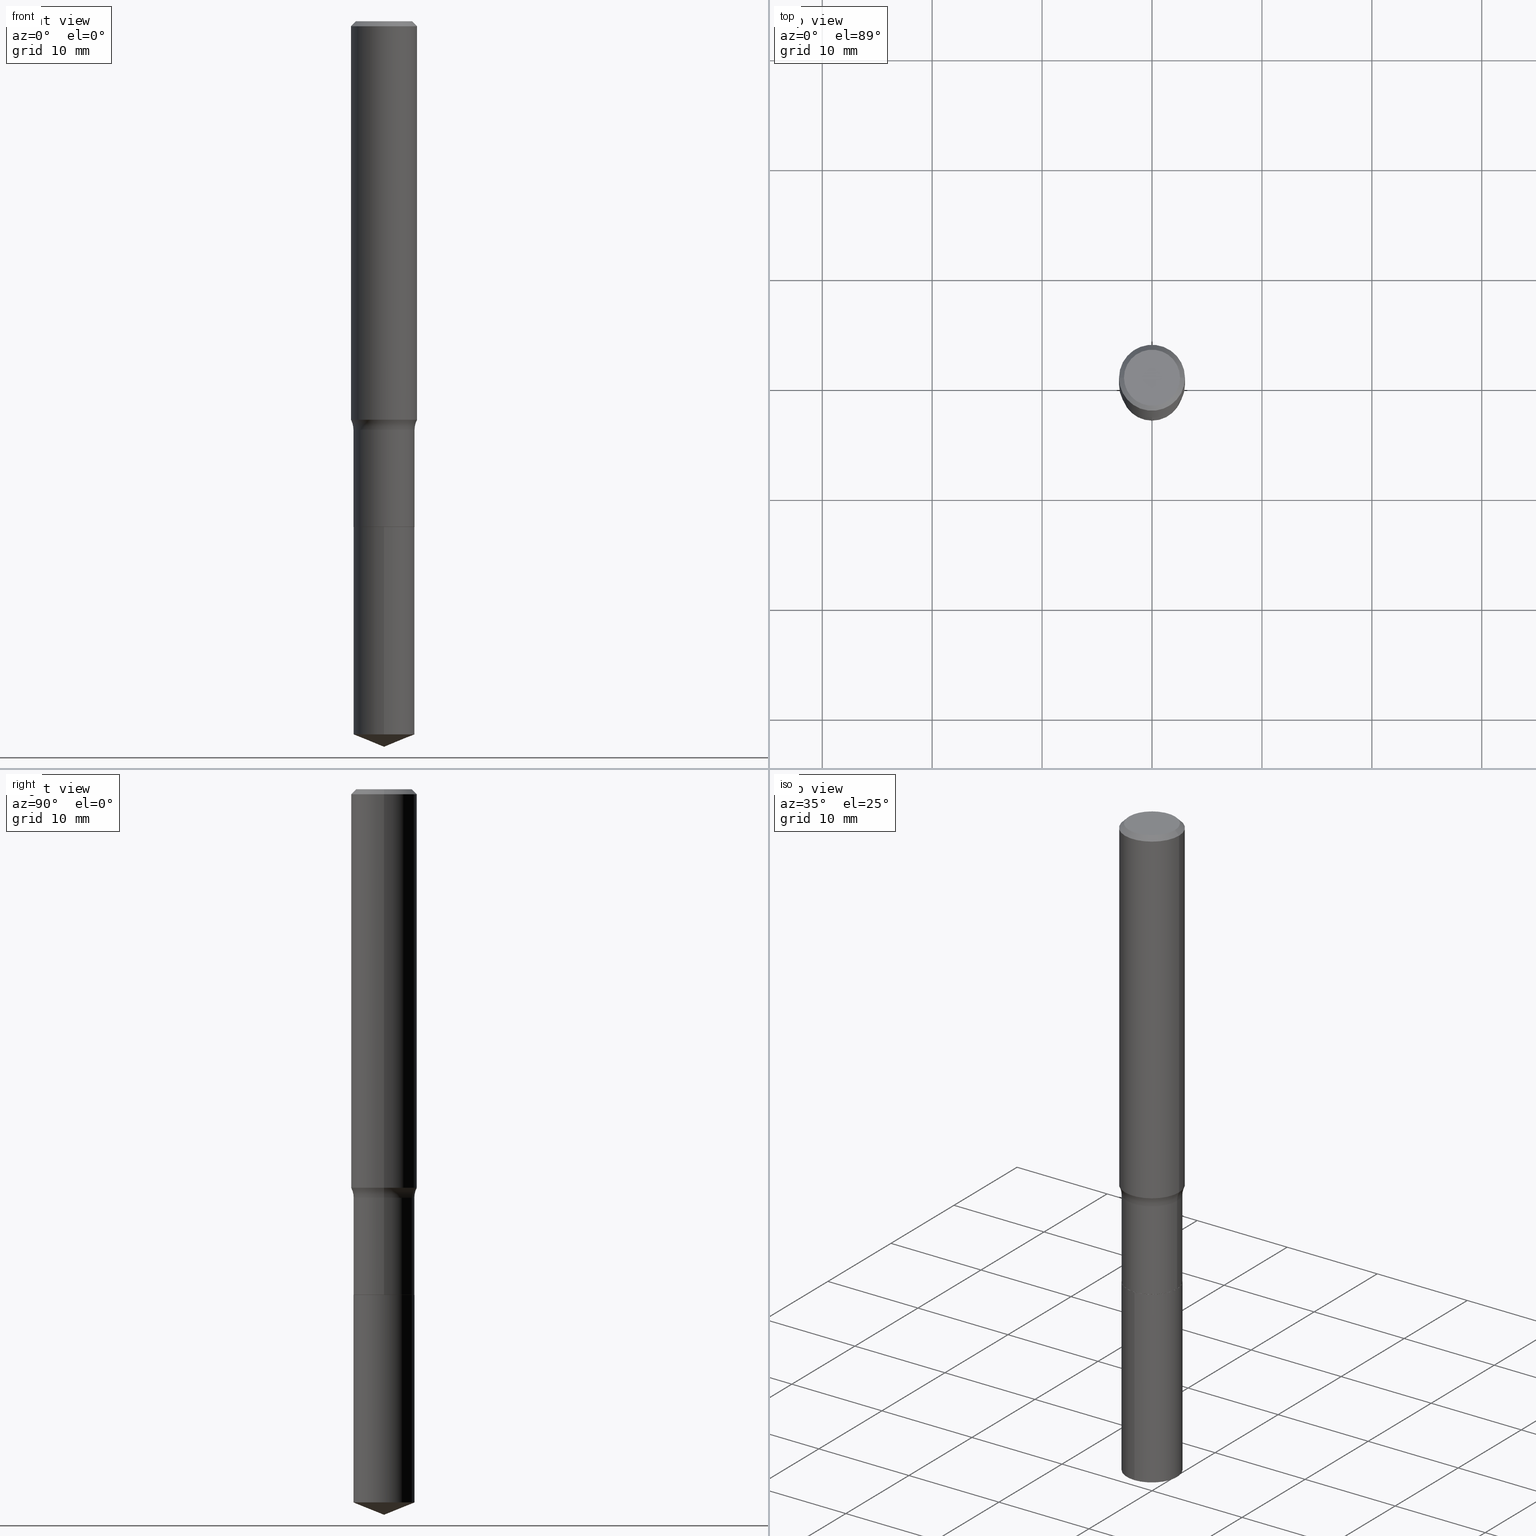
[diagram: canonical four-view strip — front | top / right | iso, engineering-drawing reading convention]
A machine part, canonical four-view strip (front | top / right | iso — engineering-drawing reading convention). The complete STEP part file that produces these views, byte-faithful:
ISO-10303-21;
HEADER;
FILE_DESCRIPTION (( 'STEP AP203' ),
    '1' );
FILE_NAME ('56808.STEP',
    '2024-04-19T14:01:16',
    ( '' ),
    ( '' ),
    'SwSTEP 2.0',
    'SolidWorks 2023',
    '' );
FILE_SCHEMA (( 'CONFIG_CONTROL_DESIGN' ));
ENDSEC;

DATA;
#1 = CIRCLE ( 'NONE', #265, 0.1088999999999999968 ) ;
#2 = CC_DESIGN_SECURITY_CLASSIFICATION ( #406, ( #122 ) ) ;
#3 = VERTEX_POINT ( 'NONE', #12 ) ;
#4 = FACE_OUTER_BOUND ( 'NONE', #281, .T. ) ;
#5 = ORIENTED_EDGE ( 'NONE', *, *, #148, .T. ) ;
#6 = ORIENTED_EDGE ( 'NONE', *, *, #490, .F. ) ;
#7 = LINE ( 'NONE', #306, #66 ) ;
#8 = EDGE_LOOP ( 'NONE', ( #5, #430, #42, #102 ) ) ;
#9 = AXIS2_PLACEMENT_3D ( 'NONE', #32, #447, #35 ) ;
#10 = EDGE_CURVE ( 'NONE', #452, #426, #289, .T. ) ;
#11 = CYLINDRICAL_SURFACE ( 'NONE', #95, 0.1181000000000000799 ) ;
#12 = CARTESIAN_POINT ( 'NONE',  ( 6.354189623237778583E-29, -9.072431978065361449E-15, -2.598399999999999821 ) ) ;
#13 = ORIENTED_EDGE ( 'NONE', *, *, #70, .T. ) ;
#14 = VERTEX_POINT ( 'NONE', #22 ) ;
#15 = ORIENTED_EDGE ( 'NONE', *, *, #91, .F. ) ;
#16 = AXIS2_PLACEMENT_3D ( 'NONE', #118, #190, #339 ) ;
#17 = CIRCLE ( 'NONE', #290, 0.1181000000000001632 ) ;
#18 = CARTESIAN_POINT ( 'NONE',  ( -0.1093999999999999834, 7.773337529215494852E-16, -5.381314988738866015E-30 ) ) ;
#19 = EDGE_CURVE ( 'NONE', #58, #240, #376, .T. ) ;
#20 = FACE_OUTER_BOUND ( 'NONE', #359, .T. ) ;
#21 = DIRECTION ( 'NONE',  ( -2.445423962145081395E-29, 3.491545558060868781E-15, 1.000000000000000000 ) ) ;
#22 = CARTESIAN_POINT ( 'NONE',  ( -0.1181000000000001909, -4.144595831574545363E-15, -1.427401815688501108 ) ) ;
#23 = DIRECTION ( 'NONE',  ( -6.982962677686265922E-15, -1.000000000000000000, 4.994237648380736877E-15 ) ) ;
#24 = DIRECTION ( 'NONE',  ( -6.982962677686265922E-15, -1.000000000000000000, 2.497118824190368439E-15 ) ) ;
#25 = EDGE_CURVE ( 'NONE', #454, #120, #171, .T. ) ;
#26 = TOROIDAL_SURFACE ( 'NONE', #149, 0.1873999999999999555, 0.07799999999999999989 ) ;
#27 = CARTESIAN_POINT ( 'NONE',  ( 0.1180999999999999966, -8.720764054544245267E-16, -0.01771500000000010913 ) ) ;
#28 = APPLICATION_PROTOCOL_DEFINITION ( 'international standard', 'config_control_design', 1994, #44 ) ;
#29 = LINE ( 'NONE', #27, #428 ) ;
#30 = LINE ( 'NONE', #373, #107 ) ;
#31 = ORIENTED_EDGE ( 'NONE', *, *, #129, .T. ) ;
#32 = CARTESIAN_POINT ( 'NONE',  ( 3.578209957210091410E-29, -5.108735494995289992E-15, -1.463199999999999834 ) ) ;
#33 = AXIS2_PLACEMENT_3D ( 'NONE', #57, #174, #137 ) ;
#34 = DIRECTION ( 'NONE',  ( -2.445468806185136877E-29, 3.491481338843145188E-15, 1.000000000000000000 ) ) ;
#35 = DIRECTION ( 'NONE',  ( 1.000000000000000000, -6.982962677686267499E-15, 4.883557194083113462E-29 ) ) ;
#36 = ORIENTED_EDGE ( 'NONE', *, *, #425, .T. ) ;
#37 = ORIENTED_EDGE ( 'NONE', *, *, #460, .F. ) ;
#38 = EDGE_CURVE ( 'NONE', #491, #433, #300, .T. ) ;
#39 = PERSON_AND_ORGANIZATION_ROLE ( 'creator' ) ;
#40 = AXIS2_PLACEMENT_3D ( 'NONE', #368, #184, #180 ) ;
#41 = EDGE_LOOP ( 'NONE', ( #51, #150, #309, #203 ) ) ;
#42 = ORIENTED_EDGE ( 'NONE', *, *, #427, .F. ) ;
#43 = LINE ( 'NONE', #194, #97 ) ;
#44 = APPLICATION_CONTEXT ( 'configuration controlled 3d designs of mechanical parts and assemblies' ) ;
#45 = ORIENTED_EDGE ( 'NONE', *, *, #139, .F. ) ;
#46 = CLOSED_SHELL ( 'NONE', ( #154, #227, #59, #115, #244 ) ) ;
#47 = PRODUCT_DEFINITION ( 'UNKNOWN', '', #122, #375 ) ;
#48 = CIRCLE ( 'NONE', #165, 0.1093999999999999695 ) ;
#49 = EDGE_LOOP ( 'NONE', ( #161, #340 ) ) ;
#50 = ORIENTED_EDGE ( 'NONE', *, *, #334, .F. ) ;
#51 = ORIENTED_EDGE ( 'NONE', *, *, #374, .T. ) ;
#52 = CARTESIAN_POINT ( 'NONE',  ( 4.428744008001282238E-29, -6.323072704644935995E-15, -1.810999999999999943 ) ) ;
#53 = CC_DESIGN_DATE_AND_TIME_ASSIGNMENT ( #484, #264, ( #406 ) ) ;
#54 = PERSON_AND_ORGANIZATION_ROLE ( 'classification_officer' ) ;
#55 =( NAMED_UNIT ( * ) PLANE_ANGLE_UNIT ( ) SI_UNIT ( $, .RADIAN. ) );
#56 = AXIS2_PLACEMENT_3D ( 'NONE', #475, #204, #103 ) ;
#57 = CARTESIAN_POINT ( 'NONE',  ( 4.427521273598189436E-29, -6.321326963975514491E-15, -1.810499999999999998 ) ) ;
#58 = VERTEX_POINT ( 'NONE', #387 ) ;
#59 = ADVANCED_FACE ( 'NONE', ( #421 ), #214, .T. ) ;
#60 = ADVANCED_FACE ( 'NONE', ( #4 ), #87, .T. ) ;
#61 = APPLICATION_PROTOCOL_DEFINITION ( 'international standard', 'config_control_design', 1994, #292 ) ;
#62 = DIRECTION ( 'NONE',  ( 6.588037525764796813E-15, 0.9271838545667896447, 0.3746065934159060196 ) ) ;
#63 = APPROVAL_ROLE ( '' ) ;
#64 = CARTESIAN_POINT ( 'NONE',  ( 0.000000000000000000, 0.000000000000000000, 0.000000000000000000 ) ) ;
#65 = APPROVAL_STATUS ( 'not_yet_approved' ) ;
#66 = VECTOR ( 'NONE', #275, 39.37007874015748143 ) ;
#67 = AXIS2_PLACEMENT_3D ( 'NONE', #217, #488, #106 ) ;
#68 = LOCAL_TIME ( 10, 1, 16.00000000000000000, #219 ) ;
#69 = PLANE ( 'NONE',  #40 ) ;
#70 = EDGE_CURVE ( 'NONE', #346, #268, #7, .T. ) ;
#71 = CARTESIAN_POINT ( 'NONE',  ( 0.1088999999999999968, -7.083517340244970560E-15, -1.810999999999999943 ) ) ;
#72 = DIRECTION ( 'NONE',  ( -2.445468806185136877E-29, 3.491481338843145188E-15, 1.000000000000000000 ) ) ;
#73 = AXIS2_PLACEMENT_3D ( 'NONE', #226, #308, #414 ) ;
#74 = CARTESIAN_POINT ( 'NONE',  ( 0.1181000000000000799, -8.246878922347486570E-16, 5.758764772215004644E-30 ) ) ;
#75 = ADVANCED_FACE ( 'NONE', ( #450 ), #156, .F. ) ;
#76 = ORIENTED_EDGE ( 'NONE', *, *, #442, .T. ) ;
#77 = UNCERTAINTY_MEASURE_WITH_UNIT (LENGTH_MEASURE( 1.000000000000000082E-05 ), #350, 'distance_accuracy_value', 'NONE');
#78 = DIRECTION ( 'NONE',  ( -2.445423962145081395E-29, 3.491545558060868781E-15, 1.000000000000000000 ) ) ;
#79 = AXIS2_PLACEMENT_3D ( 'NONE', #416, #78, #229 ) ;
#80 = CIRCLE ( 'NONE', #338, 0.1180999999999999966 ) ;
#81 = ORIENTED_EDGE ( 'NONE', *, *, #391, .T. ) ;
#82 = DIRECTION ( 'NONE',  ( -6.474490251793184940E-15, -0.9271838545667872022, 0.3746065934159125144 ) ) ;
#83 = CARTESIAN_POINT ( 'NONE',  ( 4.428744008001282238E-29, -6.323072704644935995E-15, -1.810999999999999943 ) ) ;
#84 = EDGE_CURVE ( 'NONE', #314, #240, #151, .T. ) ;
#85 = PRODUCT ( '56808', '56808', '', ( #332 ) ) ;
#86 = DIRECTION ( 'NONE',  ( -6.982962677686266711E-15, -1.000000000000000000, 3.491481338843145583E-15 ) ) ;
#87 = CONICAL_SURFACE ( 'NONE', #280, 0.1180999999999999966, 0.7853981633974459475 ) ;
#88 = AXIS2_PLACEMENT_3D ( 'NONE', #64, #220, #143 ) ;
#89 = SECURITY_CLASSIFICATION_LEVEL ( 'unclassified' ) ;
#90 = EDGE_LOOP ( 'NONE', ( #191, #436, #271, #348 ) ) ;
#91 = EDGE_CURVE ( 'NONE', #393, #268, #128, .T. ) ;
#92 = DIRECTION ( 'NONE',  ( 1.000000000000000000, -6.982962677686266711E-15, 4.879445411049954809E-29 ) ) ;
#93 = ORIENTED_EDGE ( 'NONE', *, *, #407, .T. ) ;
#94 = ORIENTED_EDGE ( 'NONE', *, *, #442, .F. ) ;
#95 = AXIS2_PLACEMENT_3D ( 'NONE', #365, #251, #468 ) ;
#96 = CARTESIAN_POINT ( 'NONE',  ( 6.246181949503559424E-29, -8.917987725489524478E-15, -2.554199530893634051 ) ) ;
#97 = VECTOR ( 'NONE', #82, 39.37007874015748143 ) ;
#98 = COORDINATED_UNIVERSAL_TIME_OFFSET ( 5, 0, .BEHIND. ) ;
#99 = CALENDAR_DATE ( 2024, 19, 4 ) ;
#100 = APPROVAL_PERSON_ORGANIZATION ( #356, #291, #324 ) ;
#101 = ADVANCED_FACE ( 'NONE', ( #379 ), #11, .T. ) ;
#102 = ORIENTED_EDGE ( 'NONE', *, *, #70, .F. ) ;
#103 = DIRECTION ( 'NONE',  ( -6.982962677686265133E-15, -1.000000000000000000, 3.498761904101806258E-15 ) ) ;
#104 = ADVANCED_FACE ( 'NONE', ( #461 ), #241, .T. ) ;
#105 = CARTESIAN_POINT ( 'NONE',  ( 3.578209957210091410E-29, -5.108735494995289992E-15, -1.463199999999999834 ) ) ;
#106 = DIRECTION ( 'NONE',  ( 1.000000000000000000, -6.982962677686264344E-15, 0.000000000000000000 ) ) ;
#107 = VECTOR ( 'NONE', #72, 39.37007874015748143 ) ;
#108 = PERSON_AND_ORGANIZATION ( #179, #301 ) ;
#109 = DIRECTION ( 'NONE',  ( 1.000000000000000000, -6.982962677686267499E-15, 4.883557194083113462E-29 ) ) ;
#110 = APPROVAL_STATUS ( 'not_yet_approved' ) ;
#111 = SHAPE_DEFINITION_REPRESENTATION ( #386, #218 ) ;
#112 = LINE ( 'NONE', #74, #399 ) ;
#113 = AXIS2_PLACEMENT_3D ( 'NONE', #424, #279, #162 ) ;
#114 = VECTOR ( 'NONE', #224, 39.37007874015748143 ) ;
#115 = ADVANCED_FACE ( 'NONE', ( #195 ), #273, .T. ) ;
#116 = ORIENTED_EDGE ( 'NONE', *, *, #38, .F. ) ;
#117 = CARTESIAN_POINT ( 'NONE',  ( 3.490666614158254888E-29, -4.983746802507225138E-15, -1.427401815688501108 ) ) ;
#118 = CARTESIAN_POINT ( 'NONE',  ( 4.860842703676779252E-46, -6.939995124049229759E-32, -1.987693603526089945E-17 ) ) ;
#119 = LINE ( 'NONE', #158, #412 ) ;
#120 = VERTEX_POINT ( 'NONE', #202 ) ;
#121 = TOROIDAL_SURFACE ( 'NONE', #9, 0.1873999999999999555, 0.07799999999999999989 ) ;
#122 = PRODUCT_DEFINITION_FORMATION_WITH_SPECIFIED_SOURCE ( 'ANY', '', #85, .NOT_KNOWN. ) ;
#123 = DIRECTION ( 'NONE',  ( 1.000000000000000000, -6.982962677686269866E-15, 0.000000000000000000 ) ) ;
#124 = CARTESIAN_POINT ( 'NONE',  ( 0.000000000000000000, 0.000000000000000000, 0.000000000000000000 ) ) ;
#125 = EDGE_CURVE ( 'NONE', #14, #120, #325, .T. ) ;
#126 = DIRECTION ( 'NONE',  ( -2.445468806185136597E-29, 3.491481338843145583E-15, 1.000000000000000000 ) ) ;
#127 = ORIENTED_EDGE ( 'NONE', *, *, #455, .T. ) ;
#128 = CIRCLE ( 'NONE', #79, 0.1093999999999999972 ) ;
#129 = EDGE_CURVE ( 'NONE', #3, #287, #435, .T. ) ;
#130 = APPROVAL_PERSON_ORGANIZATION ( #108, #323, #63 ) ;
#131 = FACE_OUTER_BOUND ( 'NONE', #249, .T. ) ;
#132 = ORIENTED_EDGE ( 'NONE', *, *, #307, .F. ) ;
#133 = DIRECTION ( 'NONE',  ( -6.982962677686265922E-15, -1.000000000000000000, 2.497118824190368439E-15 ) ) ;
#134 = PLANE ( 'NONE',  #136 ) ;
#135 = PERSON_AND_ORGANIZATION_ROLE ( 'creator' ) ;
#136 = AXIS2_PLACEMENT_3D ( 'NONE', #288, #261, #403 ) ;
#137 = DIRECTION ( 'NONE',  ( 1.000000000000000000, -6.982962677686269866E-15, 0.000000000000000000 ) ) ;
#138 = LOCAL_TIME ( 10, 1, 16.00000000000000000, #98 ) ;
#139 = EDGE_CURVE ( 'NONE', #426, #452, #328, .T. ) ;
#140 = ORIENTED_EDGE ( 'NONE', *, *, #148, .F. ) ;
#141 = CARTESIAN_POINT ( 'NONE',  ( 0.1088999999999999968, -7.083517340244970560E-15, -1.810999999999999943 ) ) ;
#142 = APPROVAL ( #110, 'UNSPECIFIED' ) ;
#143 = DIRECTION ( 'NONE',  ( 1.000000000000000000, 0.000000000000000000, 0.000000000000000000 ) ) ;
#144 = FACE_OUTER_BOUND ( 'NONE', #90, .T. ) ;
#145 = CIRCLE ( 'NONE', #313, 0.1181000000000001632 ) ;
#146 = DATE_AND_TIME ( #298, #166 ) ;
#147 = DIMENSIONAL_EXPONENTS ( 1.000000000000000000, 0.000000000000000000, 0.000000000000000000, 0.000000000000000000, 0.000000000000000000, 0.000000000000000000, 0.000000000000000000 ) ;
#148 = EDGE_CURVE ( 'NONE', #346, #287, #458, .T. ) ;
#149 = AXIS2_PLACEMENT_3D ( 'NONE', #105, #299, #109 ) ;
#150 = ORIENTED_EDGE ( 'NONE', *, *, #25, .T. ) ;
#151 = LINE ( 'NONE', #304, #336 ) ;
#152 = ORIENTED_EDGE ( 'NONE', *, *, #362, .F. ) ;
#153 = DIRECTION ( 'NONE',  ( 1.000000000000000000, -6.982962677686270655E-15, 0.000000000000000000 ) ) ;
#154 = ADVANCED_FACE ( 'NONE', ( #467 ), #472, .T. ) ;
#155 = COORDINATED_UNIVERSAL_TIME_OFFSET ( 5, 0, .BEHIND. ) ;
#156 = PLANE ( 'NONE',  #16 ) ;
#157 = EDGE_LOOP ( 'NONE', ( #272, #186, #390, #353 ) ) ;
#158 = CARTESIAN_POINT ( 'NONE',  ( -0.1180999999999999966, 7.628363003171413738E-16, -0.01771500000000010913 ) ) ;
#159 = DIRECTION ( 'NONE',  ( -0.7071067811865459074, 2.468850131082239706E-15, -0.7071067811865492381 ) ) ;
#160 = CC_DESIGN_PERSON_AND_ORGANIZATION_ASSIGNMENT ( #469, #135, ( #122 ) ) ;
#161 = ORIENTED_EDGE ( 'NONE', *, *, #223, .F. ) ;
#162 = DIRECTION ( 'NONE',  ( 1.000000000000000000, -6.982962677686266711E-15, 4.879445411049954809E-29 ) ) ;
#163 = ORIENTED_EDGE ( 'NONE', *, *, #407, .F. ) ;
#164 = AXIS2_PLACEMENT_3D ( 'NONE', #432, #320, #232 ) ;
#165 = AXIS2_PLACEMENT_3D ( 'NONE', #471, #247, #474 ) ;
#166 = LOCAL_TIME ( 10, 1, 16.00000000000000000, #213 ) ;
#167 = DIRECTION ( 'NONE',  ( 1.000000000000000000, -6.982962677686270655E-15, 0.000000000000000000 ) ) ;
#168 = DATE_AND_TIME ( #326, #446 ) ;
#169 =( NAMED_UNIT ( * ) SI_UNIT ( $, .STERADIAN. ) SOLID_ANGLE_UNIT ( ) );
#170 = LINE ( 'NONE', #441, #478 ) ;
#171 = LINE ( 'NONE', #18, #188 ) ;
#172 = DIRECTION ( 'NONE',  ( 7.105427357601001859E-15, 1.000000000000000000, -3.491481338843145583E-15 ) ) ;
#173 = DATE_TIME_ROLE ( 'creation_date' ) ;
#174 = DIRECTION ( 'NONE',  ( -2.445468806185136597E-29, 3.491481338843145583E-15, 1.000000000000000000 ) ) ;
#175 = CARTESIAN_POINT ( 'NONE',  ( -7.639361169388149560E-16, -0.1094000000000089068, -2.554199530893633607 ) ) ;
#176 = EDGE_CURVE ( 'NONE', #14, #58, #17, .T. ) ;
#177 = EDGE_LOOP ( 'NONE', ( #254, #93, #94 ) ) ;
#178 = FACE_OUTER_BOUND ( 'NONE', #354, .T. ) ;
#179 = PERSON ( 'UNSPECIFIED', 'UNSPECIFIED', 'UNSPECIFIED', ('UNSPECIFIED'), ('UNSPECIFIED'), ('UNSPECIFIED') ) ;
#180 = DIRECTION ( 'NONE',  ( 1.000000000000000000, -6.982962677686265922E-15, 4.876176775795935793E-29 ) ) ;
#181 = AXIS2_PLACEMENT_3D ( 'NONE', #395, #208, #92 ) ;
#182 = CONICAL_SURFACE ( 'NONE', #67, 0.1088999999999999968, 0.7853981633975507526 ) ;
#183 = CC_DESIGN_PERSON_AND_ORGANIZATION_ASSIGNMENT ( #398, #54, ( #406 ) ) ;
#184 = DIRECTION ( 'NONE',  ( -2.438088387897960049E-29, 3.491481338843145188E-15, 1.000000000000000000 ) ) ;
#185 = CARTESIAN_POINT ( 'NONE',  ( -0.1003850000000000159, 7.319105043583386689E-16, -3.975387207052680940E-17 ) ) ;
#186 = ORIENTED_EDGE ( 'NONE', *, *, #362, .T. ) ;
#187 = CARTESIAN_POINT ( 'NONE',  ( 3.578209957210091410E-29, -5.108735494995289992E-15, -1.463199999999999834 ) ) ;
#188 = VECTOR ( 'NONE', #465, 39.37007874015748143 ) ;
#189 = VECTOR ( 'NONE', #372, 39.37007874015748143 ) ;
#190 = DIRECTION ( 'NONE',  ( 2.438088387897960049E-29, -3.491481338843145188E-15, -1.000000000000000000 ) ) ;
#191 = ORIENTED_EDGE ( 'NONE', *, *, #125, .F. ) ;
#192 = ORIENTED_EDGE ( 'NONE', *, *, #176, .T. ) ;
#193 = PRODUCT_RELATED_PRODUCT_CATEGORY ( 'detail', '', ( #85 ) ) ;
#194 = CARTESIAN_POINT ( 'NONE',  ( 6.354189623237778583E-29, -9.072431978065361449E-15, -2.598399999999999821 ) ) ;
#195 = FACE_OUTER_BOUND ( 'NONE', #242, .T. ) ;
#196 = CIRCLE ( 'NONE', #448, 0.1093999999999999972 ) ;
#197 = CC_DESIGN_APPROVAL ( #291, ( #122 ) ) ;
#198 = CC_DESIGN_PERSON_AND_ORGANIZATION_ASSIGNMENT ( #256, #39, ( #47 ) ) ;
#199 = ORIENTED_EDGE ( 'NONE', *, *, #91, .T. ) ;
#200 = ORIENTED_EDGE ( 'NONE', *, *, #470, .T. ) ;
#201 = DIRECTION ( 'NONE',  ( -2.445468806185136597E-29, 3.491481338843145583E-15, 1.000000000000000000 ) ) ;
#202 = CARTESIAN_POINT ( 'NONE',  ( -0.1093999999999999695, -4.937697476563853052E-15, -1.463199999999999834 ) ) ;
#203 = ORIENTED_EDGE ( 'NONE', *, *, #84, .F. ) ;
#204 = DIRECTION ( 'NONE',  ( -2.445423962145081395E-29, 3.491545558060868781E-15, 1.000000000000000000 ) ) ;
#205 = AXIS2_PLACEMENT_3D ( 'NONE', #124, #378, #423 ) ;
#206 = ORIENTED_EDGE ( 'NONE', *, *, #334, .T. ) ;
#207 = AXIS2_PLACEMENT_3D ( 'NONE', #392, #351, #286 ) ;
#208 = DIRECTION ( 'NONE',  ( -2.445468806185136597E-29, 3.491481338843145583E-15, 1.000000000000000000 ) ) ;
#209 = CARTESIAN_POINT ( 'NONE',  ( 4.332147990156996744E-31, -6.185159191760670395E-17, -0.01771500000000010913 ) ) ;
#210 = CARTESIAN_POINT ( 'NONE',  ( 4.428744008001282238E-29, -6.323072704644935995E-15, -1.810999999999999943 ) ) ;
#211 = CARTESIAN_POINT ( 'NONE',  ( 6.246181949503559424E-29, -8.917987725489524478E-15, -2.554199530893634051 ) ) ;
#212 = CARTESIAN_POINT ( 'NONE',  ( -0.1180999999999999966, -1.683648226279736288E-15, -0.01771500000000010913 ) ) ;
#213 = COORDINATED_UNIVERSAL_TIME_OFFSET ( 5, 0, .BEHIND. ) ;
#214 = CONICAL_SURFACE ( 'NONE', #492, 97.44436430772901758, 1.186823891356147076 ) ;
#215 = AXIS2_PLACEMENT_3D ( 'NONE', #417, #126, #123 ) ;
#216 = CC_DESIGN_PERSON_AND_ORGANIZATION_ASSIGNMENT ( #408, #341, ( #85 ) ) ;
#217 = CARTESIAN_POINT ( 'NONE',  ( 4.428744008001282238E-29, -6.323072704644935995E-15, -1.810999999999999943 ) ) ;
#218 = ADVANCED_BREP_SHAPE_REPRESENTATION ( '56808', ( #225, #228, #88 ), #237 ) ;
#219 = COORDINATED_UNIVERSAL_TIME_OFFSET ( 5, 0, .BEHIND. ) ;
#220 = DIRECTION ( 'NONE',  ( 0.000000000000000000, 0.000000000000000000, 1.000000000000000000 ) ) ;
#221 = CARTESIAN_POINT ( 'NONE',  ( -0.1088999999999999968, -5.549291665402186915E-15, -1.810999999999999943 ) ) ;
#222 = DATE_AND_TIME ( #371, #68 ) ;
#223 = EDGE_CURVE ( 'NONE', #303, #310, #1, .T. ) ;
#224 = DIRECTION ( 'NONE',  ( 0.7071067811866199593, -2.468850131083015945E-15, 0.7071067811864750752 ) ) ;
#225 = MANIFOLD_SOLID_BREP ( 'Body-Move/Copy2[1]', #46 ) ;
#226 = CARTESIAN_POINT ( 'NONE',  ( 0.000000000000000000, 0.000000000000000000, 0.000000000000000000 ) ) ;
#227 = ADVANCED_FACE ( 'NONE', ( #131 ), #337, .T. ) ;
#228 = MANIFOLD_SOLID_BREP ( 'Body-Move/Copy2[2]', #476 ) ;
#229 = DIRECTION ( 'NONE',  ( -6.982962677686265922E-15, -1.000000000000000000, 2.497118824190368439E-15 ) ) ;
#230 = FACE_OUTER_BOUND ( 'NONE', #462, .T. ) ;
#231 = ORIENTED_EDGE ( 'NONE', *, *, #139, .T. ) ;
#232 = DIRECTION ( 'NONE',  ( 1.000000000000000000, -6.982962677686266711E-15, 0.000000000000000000 ) ) ;
#233 = ADVANCED_FACE ( 'NONE', ( #355 ), #361, .T. ) ;
#234 = DIRECTION ( 'NONE',  ( 2.445468806185136597E-29, -3.491481338843145583E-15, -1.000000000000000000 ) ) ;
#235 = ORIENTED_EDGE ( 'NONE', *, *, #19, .F. ) ;
#236 = ORIENTED_EDGE ( 'NONE', *, *, #25, .F. ) ;
#237 =( GEOMETRIC_REPRESENTATION_CONTEXT ( 3 ) GLOBAL_UNCERTAINTY_ASSIGNED_CONTEXT ( ( #77 ) ) GLOBAL_UNIT_ASSIGNED_CONTEXT ( ( #350, #55, #169 ) ) REPRESENTATION_CONTEXT ( 'NONE', 'WORKASPACE' ) );
#238 = LENGTH_MEASURE_WITH_UNIT ( LENGTH_MEASURE( 0.02539999999999999897 ), #434 );
#239 = CALENDAR_DATE ( 2024, 19, 4 ) ;
#240 = VERTEX_POINT ( 'NONE', #396 ) ;
#241 = CYLINDRICAL_SURFACE ( 'NONE', #205, 0.1093999999999999834 ) ;
#242 = EDGE_LOOP ( 'NONE', ( #380, #76, #13, #15 ) ) ;
#243 = DIRECTION ( 'NONE',  ( 1.000000000000000000, -6.982962677686264344E-15, 0.000000000000000000 ) ) ;
#244 = ADVANCED_FACE ( 'NONE', ( #20 ), #134, .F. ) ;
#245 = PERSON_AND_ORGANIZATION ( #179, #301 ) ;
#246 = AXIS2_PLACEMENT_3D ( 'NONE', #211, #21, #282 ) ;
#247 = DIRECTION ( 'NONE',  ( -2.445468806185136597E-29, 3.491481338843145583E-15, 1.000000000000000000 ) ) ;
#248 = CARTESIAN_POINT ( 'NONE',  ( -0.1093999999999999972, -4.937697476563853052E-15, -1.810499999999999998 ) ) ;
#249 = EDGE_LOOP ( 'NONE', ( #163, #31, #140 ) ) ;
#250 = DIRECTION ( 'NONE',  ( -1.000000000000000000, 7.105427357601005014E-15, 0.000000000000000000 ) ) ;
#251 = DIRECTION ( 'NONE',  ( -2.445468806185136597E-29, 3.491481338843145583E-15, 1.000000000000000000 ) ) ;
#252 = ADVANCED_FACE ( 'NONE', ( #296 ), #69, .F. ) ;
#253 = CC_DESIGN_PERSON_AND_ORGANIZATION_ASSIGNMENT ( #245, #473, ( #122 ) ) ;
#254 = ORIENTED_EDGE ( 'NONE', *, *, #129, .F. ) ;
#255 = CARTESIAN_POINT ( 'NONE',  ( -0.1088999999999999968, -5.546642438228075714E-15, -1.810999999999999943 ) ) ;
#256 = PERSON_AND_ORGANIZATION ( #179, #301 ) ;
#257 = ORIENTED_EDGE ( 'NONE', *, *, #460, .T. ) ;
#258 = AXIS2_PLACEMENT_3D ( 'NONE', #285, #201, #401 ) ;
#259 = CARTESIAN_POINT ( 'NONE',  ( 0.1093999999999999972, -7.085263080914392852E-15, -1.810499999999999998 ) ) ;
#260 = DIRECTION ( 'NONE',  ( 2.445468806185136597E-29, -3.491481338843145583E-15, -1.000000000000000000 ) ) ;
#261 = DIRECTION ( 'NONE',  ( 2.445423962145081115E-29, -3.491545558060868781E-15, -1.000000000000000000 ) ) ;
#262 = APPROVAL_ROLE ( '' ) ;
#263 = LINE ( 'NONE', #71, #114 ) ;
#264 = DATE_TIME_ROLE ( 'classification_date' ) ;
#265 = AXIS2_PLACEMENT_3D ( 'NONE', #210, #431, #243 ) ;
#266 = CC_DESIGN_APPROVAL ( #323, ( #406 ) ) ;
#267 = APPROVAL_DATE_TIME ( #222, #142 ) ;
#268 = VERTEX_POINT ( 'NONE', #482 ) ;
#269 = ADVANCED_FACE ( 'NONE', ( #370 ), #121, .F. ) ;
#270 = AXIS2_PLACEMENT_3D ( 'NONE', #385, #260, #445 ) ;
#271 = ORIENTED_EDGE ( 'NONE', *, *, #19, .T. ) ;
#272 = ORIENTED_EDGE ( 'NONE', *, *, #223, .T. ) ;
#273 = CYLINDRICAL_SURFACE ( 'NONE', #397, 0.1093999999999999972 ) ;
#274 = EDGE_LOOP ( 'NONE', ( #420, #192, #384, #116 ) ) ;
#275 = DIRECTION ( 'NONE',  ( -2.445423962145081676E-29, 3.491545558060868781E-15, 1.000000000000000000 ) ) ;
#276 = ORIENTED_EDGE ( 'NONE', *, *, #176, .F. ) ;
#277 = ORIENTED_EDGE ( 'NONE', *, *, #369, .T. ) ;
#278 = COORDINATED_UNIVERSAL_TIME_OFFSET ( 5, 0, .BEHIND. ) ;
#279 = DIRECTION ( 'NONE',  ( -2.445468806185136597E-29, 3.491481338843145583E-15, 1.000000000000000000 ) ) ;
#280 = AXIS2_PLACEMENT_3D ( 'NONE', #345, #234, #302 ) ;
#281 = EDGE_LOOP ( 'NONE', ( #50, #45, #277, #480 ) ) ;
#282 = DIRECTION ( 'NONE',  ( -6.982962677686265922E-15, -1.000000000000000000, 4.994237648380736877E-15 ) ) ;
#283 = EDGE_LOOP ( 'NONE', ( #276, #466, #330, #235 ) ) ;
#284 = ADVANCED_FACE ( 'NONE', ( #144 ), #26, .F. ) ;
#285 = CARTESIAN_POINT ( 'NONE',  ( 4.428744008001282238E-29, -6.323072704644935995E-15, -1.810999999999999943 ) ) ;
#286 = DIRECTION ( 'NONE',  ( 1.000000000000000000, -6.982962677686266711E-15, 4.876176775795935793E-29 ) ) ;
#287 = VERTEX_POINT ( 'NONE', #449 ) ;
#288 = CARTESIAN_POINT ( 'NONE',  ( 4.428744008001282238E-29, -6.323072704644935995E-15, -1.810999999999999943 ) ) ;
#289 = CIRCLE ( 'NONE', #113, 0.1003850000000000159 ) ;
#290 = AXIS2_PLACEMENT_3D ( 'NONE', #322, #363, #167 ) ;
#291 = APPROVAL ( #347, 'UNSPECIFIED' ) ;
#292 = APPLICATION_CONTEXT ( 'configuration controlled 3d designs of mechanical parts and assemblies' ) ;
#293 = DIRECTION ( 'NONE',  ( -2.445423962145081676E-29, 3.491545558060868781E-15, 1.000000000000000000 ) ) ;
#294 = DIRECTION ( 'NONE',  ( 1.000000000000000000, -6.982962677686271444E-15, 0.000000000000000000 ) ) ;
#295 = CIRCLE ( 'NONE', #215, 0.1093999999999999972 ) ;
#296 = FACE_OUTER_BOUND ( 'NONE', #49, .T. ) ;
#297 = PERSON_AND_ORGANIZATION ( #179, #301 ) ;
#298 = CALENDAR_DATE ( 2024, 19, 4 ) ;
#299 = DIRECTION ( 'NONE',  ( -2.445468806185136597E-29, 3.491481338843145583E-15, 1.000000000000000000 ) ) ;
#300 = CIRCLE ( 'NONE', #164, 0.1180999999999999966 ) ;
#301 = ORGANIZATION ( 'UNSPECIFIED', 'UNSPECIFIED', '' ) ;
#302 = DIRECTION ( 'NONE',  ( -1.000000000000000000, 6.982962677686266711E-15, 0.000000000000000000 ) ) ;
#303 = VERTEX_POINT ( 'NONE', #141 ) ;
#304 = CARTESIAN_POINT ( 'NONE',  ( 0.1093999999999999834, -7.639361169388774732E-16, 5.334537392720753208E-30 ) ) ;
#305 = CONICAL_SURFACE ( 'NONE', #388, 0.1088999999999999968, 0.7853981633975507526 ) ;
#306 = CARTESIAN_POINT ( 'NONE',  ( -7.639361169388331984E-16, -0.1094000000000063116, -1.810999999999999721 ) ) ;
#307 = EDGE_CURVE ( 'NONE', #58, #433, #112, .T. ) ;
#308 = DIRECTION ( 'NONE',  ( -2.445468806185136597E-29, 3.491481338843145583E-15, 1.000000000000000000 ) ) ;
#309 = ORIENTED_EDGE ( 'NONE', *, *, #329, .F. ) ;
#310 = VERTEX_POINT ( 'NONE', #255 ) ;
#311 = CARTESIAN_POINT ( 'NONE',  ( -0.1873999999999999555, -3.777178408180862954E-15, -1.463199999999999834 ) ) ;
#312 = CARTESIAN_POINT ( 'NONE',  ( 0.1873999999999999555, -6.417342700793696399E-15, -1.463199999999999834 ) ) ;
#313 = AXIS2_PLACEMENT_3D ( 'NONE', #117, #381, #153 ) ;
#314 = VERTEX_POINT ( 'NONE', #259 ) ;
#315 = EDGE_CURVE ( 'NONE', #303, #314, #263, .T. ) ;
#316 = DIRECTION ( 'NONE',  ( -2.445423962145081395E-29, 3.491545558060868781E-15, 1.000000000000000000 ) ) ;
#317 = DIRECTION ( 'NONE',  ( -6.982962677686265922E-15, -1.000000000000000000, 2.497118824190368439E-15 ) ) ;
#318 = DATE_AND_TIME ( #99, #389 ) ;
#319 = CARTESIAN_POINT ( 'NONE',  ( 0.1003850000000000159, -7.803837484803599345E-16, -3.975387207051662201E-17 ) ) ;
#320 = DIRECTION ( 'NONE',  ( -2.445468806185136597E-29, 3.491481338843145583E-15, 1.000000000000000000 ) ) ;
#321 = ORIENTED_EDGE ( 'NONE', *, *, #455, .F. ) ;
#322 = CARTESIAN_POINT ( 'NONE',  ( 3.490666614158254888E-29, -4.983746802507225138E-15, -1.427401815688501108 ) ) ;
#323 = APPROVAL ( #65, 'UNSPECIFIED' ) ;
#324 = APPROVAL_ROLE ( '' ) ;
#325 = CIRCLE ( 'NONE', #358, 0.07799999999999999989 ) ;
#326 = CALENDAR_DATE ( 2024, 19, 4 ) ;
#327 = CARTESIAN_POINT ( 'NONE',  ( 4.428744008001282238E-29, -6.323072704644935995E-15, -1.810999999999999943 ) ) ;
#328 = CIRCLE ( 'NONE', #181, 0.1003850000000000159 ) ;
#329 = EDGE_CURVE ( 'NONE', #240, #120, #418, .T. ) ;
#330 = ORIENTED_EDGE ( 'NONE', *, *, #490, .T. ) ;
#331 = AXIS2_PLACEMENT_3D ( 'NONE', #96, #438, #23 ) ;
#332 = MECHANICAL_CONTEXT ( 'NONE', #292, 'mechanical' ) ;
#333 = DIRECTION ( 'NONE',  ( -2.445423962145081395E-29, 3.491545558060868781E-15, 1.000000000000000000 ) ) ;
#334 = EDGE_CURVE ( 'NONE', #452, #433, #29, .T. ) ;
#335 = CC_DESIGN_DATE_AND_TIME_ASSIGNMENT ( #318, #173, ( #47 ) ) ;
#336 = VECTOR ( 'NONE', #453, 39.37007874015748143 ) ;
#337 = CONICAL_SURFACE ( 'NONE', #56, 97.44436430772901758, 1.186823891356147076 ) ;
#338 = AXIS2_PLACEMENT_3D ( 'NONE', #209, #360, #463 ) ;
#339 = DIRECTION ( 'NONE',  ( -1.000000000000000000, 6.982962677686265922E-15, -4.876176775795935793E-29 ) ) ;
#340 = ORIENTED_EDGE ( 'NONE', *, *, #470, .F. ) ;
#341 = PERSON_AND_ORGANIZATION_ROLE ( 'design_owner' ) ;
#342 = ORIENTED_EDGE ( 'NONE', *, *, #84, .T. ) ;
#343 = EDGE_LOOP ( 'NONE', ( #81, #36, #37, #132 ) ) ;
#344 = ORIENTED_EDGE ( 'NONE', *, *, #369, .F. ) ;
#345 = CARTESIAN_POINT ( 'NONE',  ( 4.332147990156996744E-31, -6.185159191760670395E-17, -0.01771500000000010913 ) ) ;
#346 = VERTEX_POINT ( 'NONE', #175 ) ;
#347 = APPROVAL_STATUS ( 'not_yet_approved' ) ;
#348 = ORIENTED_EDGE ( 'NONE', *, *, #329, .T. ) ;
#349 = ORIENTED_EDGE ( 'NONE', *, *, #10, .F. ) ;
#350 =( CONVERSION_BASED_UNIT ( 'INCH', #238 ) LENGTH_UNIT ( ) NAMED_UNIT ( #147 ) );
#351 = DIRECTION ( 'NONE',  ( -2.445468806185136597E-29, 3.491481338843145583E-15, 1.000000000000000000 ) ) ;
#352 = ADVANCED_FACE ( 'NONE', ( #178 ), #305, .T. ) ;
#353 = ORIENTED_EDGE ( 'NONE', *, *, #315, .F. ) ;
#354 = EDGE_LOOP ( 'NONE', ( #152, #200, #429, #321 ) ) ;
#355 = FACE_OUTER_BOUND ( 'NONE', #443, .T. ) ;
#356 = PERSON_AND_ORGANIZATION ( #179, #301 ) ;
#357 = DIRECTION ( 'NONE',  ( 1.000000000000000000, -6.982962677686270655E-15, 0.000000000000000000 ) ) ;
#358 = AXIS2_PLACEMENT_3D ( 'NONE', #311, #172, #250 ) ;
#359 = EDGE_LOOP ( 'NONE', ( #394, #199 ) ) ;
#360 = DIRECTION ( 'NONE',  ( -2.445468806185136597E-29, 3.491481338843145583E-15, 1.000000000000000000 ) ) ;
#361 = CYLINDRICAL_SURFACE ( 'NONE', #207, 0.1093999999999999834 ) ;
#362 = EDGE_CURVE ( 'NONE', #310, #454, #409, .T. ) ;
#363 = DIRECTION ( 'NONE',  ( -2.445468806185136597E-29, 3.491481338843145583E-15, 1.000000000000000000 ) ) ;
#364 = CARTESIAN_POINT ( 'NONE',  ( 0.1180999999999999966, -8.865394841523547570E-16, -0.01771500000000010913 ) ) ;
#365 = CARTESIAN_POINT ( 'NONE',  ( 0.000000000000000000, 0.000000000000000000, 0.000000000000000000 ) ) ;
#366 = AXIS2_PLACEMENT_3D ( 'NONE', #187, #367, #294 ) ;
#367 = DIRECTION ( 'NONE',  ( -2.445468806185136597E-29, 3.491481338843145583E-15, 1.000000000000000000 ) ) ;
#368 = CARTESIAN_POINT ( 'NONE',  ( 4.428744008001282238E-29, -6.323072704644935995E-15, -1.810999999999999943 ) ) ;
#369 = EDGE_CURVE ( 'NONE', #426, #491, #119, .T. ) ;
#370 = FACE_OUTER_BOUND ( 'NONE', #283, .T. ) ;
#371 = CALENDAR_DATE ( 2024, 19, 4 ) ;
#372 = DIRECTION ( 'NONE',  ( -0.7071067811866199593, 7.493145998870616062E-15, 0.7071067811864750752 ) ) ;
#373 = CARTESIAN_POINT ( 'NONE',  ( -0.1181000000000000799, 8.391509709326788873E-16, -5.809262341591047988E-30 ) ) ;
#374 = EDGE_CURVE ( 'NONE', #314, #454, #295, .T. ) ;
#375 = DESIGN_CONTEXT ( 'detailed design', #44, 'design' ) ;
#376 = CIRCLE ( 'NONE', #404, 0.07799999999999999989 ) ;
#377 = AXIS2_PLACEMENT_3D ( 'NONE', #52, #440, #133 ) ;
#378 = DIRECTION ( 'NONE',  ( -2.445468806185136597E-29, 3.491481338843145583E-15, 1.000000000000000000 ) ) ;
#379 = FACE_OUTER_BOUND ( 'NONE', #274, .T. ) ;
#380 = ORIENTED_EDGE ( 'NONE', *, *, #451, .F. ) ;
#381 = DIRECTION ( 'NONE',  ( -2.445468806185136597E-29, 3.491481338843145583E-15, 1.000000000000000000 ) ) ;
#382 = ORIENTED_EDGE ( 'NONE', *, *, #10, .T. ) ;
#383 = ADVANCED_FACE ( 'NONE', ( #415 ), #422, .T. ) ;
#384 = ORIENTED_EDGE ( 'NONE', *, *, #307, .T. ) ;
#385 = CARTESIAN_POINT ( 'NONE',  ( 4.332147990156996744E-31, -6.185159191760670395E-17, -0.01771500000000010913 ) ) ;
#386 = PRODUCT_DEFINITION_SHAPE ( 'NONE', 'NONE',  #47 ) ;
#387 = CARTESIAN_POINT ( 'NONE',  ( 0.1181000000000001909, -5.808434694741974978E-15, -1.427401815688501108 ) ) ;
#388 = AXIS2_PLACEMENT_3D ( 'NONE', #327, #410, #483 ) ;
#389 = LOCAL_TIME ( 10, 1, 16.00000000000000000, #155 ) ;
#390 = ORIENTED_EDGE ( 'NONE', *, *, #374, .F. ) ;
#391 = EDGE_CURVE ( 'NONE', #58, #14, #145, .T. ) ;
#392 = CARTESIAN_POINT ( 'NONE',  ( 0.000000000000000000, 0.000000000000000000, 0.000000000000000000 ) ) ;
#393 = VERTEX_POINT ( 'NONE', #456 ) ;
#394 = ORIENTED_EDGE ( 'NONE', *, *, #427, .T. ) ;
#395 = CARTESIAN_POINT ( 'NONE',  ( 9.721685407353558503E-46, -1.387999024809845952E-31, -3.975387207052179891E-17 ) ) ;
#396 = CARTESIAN_POINT ( 'NONE',  ( 0.1093999999999999695, -5.872671611934168353E-15, -1.463199999999999834 ) ) ;
#397 = AXIS2_PLACEMENT_3D ( 'NONE', #83, #316, #24 ) ;
#398 = PERSON_AND_ORGANIZATION ( #179, #301 ) ;
#399 = VECTOR ( 'NONE', #34, 39.37007874015748143 ) ;
#400 = DIRECTION ( 'NONE',  ( -2.445423962145081395E-29, 3.491545558060868781E-15, 1.000000000000000000 ) ) ;
#401 = DIRECTION ( 'NONE',  ( 1.000000000000000000, -6.982962677686264344E-15, 0.000000000000000000 ) ) ;
#402 = CARTESIAN_POINT ( 'NONE',  ( 6.354353472627372781E-29, -9.072199376058768375E-15, -2.598399999999999821 ) ) ;
#403 = DIRECTION ( 'NONE',  ( 6.982962677686265922E-15, 1.000000000000000000, -3.491545558060868781E-15 ) ) ;
#404 = AXIS2_PLACEMENT_3D ( 'NONE', #312, #86, #357 ) ;
#405 = APPROVAL_PERSON_ORGANIZATION ( #297, #142, #262 ) ;
#406 = SECURITY_CLASSIFICATION ( '', '', #89 ) ;
#407 = EDGE_CURVE ( 'NONE', #3, #346, #43, .T. ) ;
#408 = PERSON_AND_ORGANIZATION ( #179, #301 ) ;
#409 = LINE ( 'NONE', #221, #189 ) ;
#410 = DIRECTION ( 'NONE',  ( -2.445468806185136597E-29, 3.491481338843145583E-15, 1.000000000000000000 ) ) ;
#411 = ADVANCED_FACE ( 'NONE', ( #230 ), #459, .T. ) ;
#412 = VECTOR ( 'NONE', #159, 39.37007874015748143 ) ;
#413 = CC_DESIGN_APPROVAL ( #142, ( #47 ) ) ;
#414 = DIRECTION ( 'NONE',  ( 1.000000000000000000, -6.982962677686266711E-15, 4.876176775795936353E-29 ) ) ;
#415 = FACE_OUTER_BOUND ( 'NONE', #343, .T. ) ;
#416 = CARTESIAN_POINT ( 'NONE',  ( 4.428744008001282238E-29, -6.323072704644935995E-15, -1.810999999999999943 ) ) ;
#417 = CARTESIAN_POINT ( 'NONE',  ( 4.427521273598189436E-29, -6.321326963975514491E-15, -1.810499999999999998 ) ) ;
#418 = CIRCLE ( 'NONE', #366, 0.1093999999999999695 ) ;
#419 = ADVANCED_FACE ( 'NONE', ( #481 ), #182, .T. ) ;
#420 = ORIENTED_EDGE ( 'NONE', *, *, #425, .F. ) ;
#421 = FACE_OUTER_BOUND ( 'NONE', #177, .T. ) ;
#422 = CYLINDRICAL_SURFACE ( 'NONE', #73, 0.1181000000000000799 ) ;
#423 = DIRECTION ( 'NONE',  ( 1.000000000000000000, -6.982962677686266711E-15, 4.876176775795935793E-29 ) ) ;
#424 = CARTESIAN_POINT ( 'NONE',  ( 9.721685407353558503E-46, -1.387999024809845952E-31, -3.975387207052179891E-17 ) ) ;
#425 = EDGE_CURVE ( 'NONE', #14, #491, #30, .T. ) ;
#426 = VERTEX_POINT ( 'NONE', #185 ) ;
#427 = EDGE_CURVE ( 'NONE', #268, #393, #196, .T. ) ;
#428 = VECTOR ( 'NONE', #444, 39.37007874015748143 ) ;
#429 = ORIENTED_EDGE ( 'NONE', *, *, #315, .T. ) ;
#430 = ORIENTED_EDGE ( 'NONE', *, *, #451, .T. ) ;
#431 = DIRECTION ( 'NONE',  ( -2.445468806185136597E-29, 3.491481338843145583E-15, 1.000000000000000000 ) ) ;
#432 = CARTESIAN_POINT ( 'NONE',  ( 4.332147990156996744E-31, -6.185159191760670395E-17, -0.01771500000000010913 ) ) ;
#433 = VERTEX_POINT ( 'NONE', #364 ) ;
#434 =( LENGTH_UNIT ( ) NAMED_UNIT ( * ) SI_UNIT ( $, .METRE. ) );
#435 = LINE ( 'NONE', #402, #486 ) ;
#436 = ORIENTED_EDGE ( 'NONE', *, *, #391, .F. ) ;
#437 = CIRCLE ( 'NONE', #33, 0.1093999999999999972 ) ;
#438 = DIRECTION ( 'NONE',  ( -2.445423962145081395E-29, 3.491545558060868781E-15, 1.000000000000000000 ) ) ;
#439 = EDGE_LOOP ( 'NONE', ( #231, #382 ) ) ;
#440 = DIRECTION ( 'NONE',  ( -2.445423962145081395E-29, 3.491545558060868781E-15, 1.000000000000000000 ) ) ;
#441 = CARTESIAN_POINT ( 'NONE',  ( 7.773337529215937600E-16, 0.1093999999999936829, -1.811000000000000165 ) ) ;
#442 = EDGE_CURVE ( 'NONE', #287, #346, #464, .T. ) ;
#443 = EDGE_LOOP ( 'NONE', ( #236, #127, #342, #6 ) ) ;
#444 = DIRECTION ( 'NONE',  ( 0.7071067811865459074, -7.319954787623251312E-15, -0.7071067811865492381 ) ) ;
#445 = DIRECTION ( 'NONE',  ( -1.000000000000000000, 6.982962677686266711E-15, 0.000000000000000000 ) ) ;
#446 = LOCAL_TIME ( 10, 1, 16.00000000000000000, #278 ) ;
#447 = DIRECTION ( 'NONE',  ( -2.445468806185136597E-29, 3.491481338843145583E-15, 1.000000000000000000 ) ) ;
#448 = AXIS2_PLACEMENT_3D ( 'NONE', #485, #333, #317 ) ;
#449 = CARTESIAN_POINT ( 'NONE',  ( 7.773337529216120024E-16, 0.1093999999999910877, -2.554199530893634495 ) ) ;
#450 = FACE_OUTER_BOUND ( 'NONE', #439, .T. ) ;
#451 = EDGE_CURVE ( 'NONE', #287, #393, #170, .T. ) ;
#452 = VERTEX_POINT ( 'NONE', #319 ) ;
#453 = DIRECTION ( 'NONE',  ( -2.445468806185136877E-29, 3.491481338843145188E-15, 1.000000000000000000 ) ) ;
#454 = VERTEX_POINT ( 'NONE', #248 ) ;
#455 = EDGE_CURVE ( 'NONE', #454, #314, #437, .T. ) ;
#456 = CARTESIAN_POINT ( 'NONE',  ( 7.773337529216120024E-16, 0.1093999999999936690, -1.811000000000000165 ) ) ;
#457 = DIRECTION ( 'NONE',  ( -6.982962677686265133E-15, -1.000000000000000000, 3.498761904101806258E-15 ) ) ;
#458 = CIRCLE ( 'NONE', #331, 0.1093999999999999972 ) ;
#459 = CONICAL_SURFACE ( 'NONE', #270, 0.1180999999999999966, 0.7853981633974459475 ) ;
#460 = EDGE_CURVE ( 'NONE', #433, #491, #80, .T. ) ;
#461 = FACE_OUTER_BOUND ( 'NONE', #41, .T. ) ;
#462 = EDGE_LOOP ( 'NONE', ( #349, #206, #257, #344 ) ) ;
#463 = DIRECTION ( 'NONE',  ( 1.000000000000000000, -6.982962677686266711E-15, 0.000000000000000000 ) ) ;
#464 = CIRCLE ( 'NONE', #246, 0.1093999999999999972 ) ;
#465 = DIRECTION ( 'NONE',  ( -2.445468806185136877E-29, 3.491481338843145188E-15, 1.000000000000000000 ) ) ;
#466 = ORIENTED_EDGE ( 'NONE', *, *, #125, .T. ) ;
#467 = FACE_OUTER_BOUND ( 'NONE', #8, .T. ) ;
#468 = DIRECTION ( 'NONE',  ( 1.000000000000000000, -6.982962677686266711E-15, 4.876176775795936353E-29 ) ) ;
#469 = PERSON_AND_ORGANIZATION ( #179, #301 ) ;
#470 = EDGE_CURVE ( 'NONE', #310, #303, #487, .T. ) ;
#471 = CARTESIAN_POINT ( 'NONE',  ( 3.578209957210091410E-29, -5.108735494995289992E-15, -1.463199999999999834 ) ) ;
#472 = CYLINDRICAL_SURFACE ( 'NONE', #377, 0.1093999999999999972 ) ;
#473 = PERSON_AND_ORGANIZATION_ROLE ( 'design_supplier' ) ;
#474 = DIRECTION ( 'NONE',  ( 1.000000000000000000, -6.982962677686271444E-15, 0.000000000000000000 ) ) ;
#475 = CARTESIAN_POINT ( 'NONE',  ( -8.992226310692543550E-28, 1.283901078686414336E-13, 36.77167874015748339 ) ) ;
#476 = CLOSED_SHELL ( 'NONE', ( #419, #411, #383, #269, #104, #233, #284, #101, #60, #75, #252, #352 ) ) ;
#477 = APPROVAL_DATE_TIME ( #168, #291 ) ;
#478 = VECTOR ( 'NONE', #293, 39.37007874015748143 ) ;
#479 = CARTESIAN_POINT ( 'NONE',  ( -8.992226310692543550E-28, 1.283901078686414336E-13, 36.77167874015748339 ) ) ;
#480 = ORIENTED_EDGE ( 'NONE', *, *, #38, .T. ) ;
#481 = FACE_OUTER_BOUND ( 'NONE', #157, .T. ) ;
#482 = CARTESIAN_POINT ( 'NONE',  ( -7.639361169388331984E-16, -0.1094000000000063116, -1.810999999999999721 ) ) ;
#483 = DIRECTION ( 'NONE',  ( 1.000000000000000000, -6.982962677686264344E-15, 0.000000000000000000 ) ) ;
#484 = DATE_AND_TIME ( #239, #138 ) ;
#485 = CARTESIAN_POINT ( 'NONE',  ( 4.428744008001282238E-29, -6.323072704644935995E-15, -1.810999999999999943 ) ) ;
#486 = VECTOR ( 'NONE', #62, 39.37007874015748854 ) ;
#487 = CIRCLE ( 'NONE', #258, 0.1088999999999999968 ) ;
#488 = DIRECTION ( 'NONE',  ( -2.445468806185136597E-29, 3.491481338843145583E-15, 1.000000000000000000 ) ) ;
#489 = APPROVAL_DATE_TIME ( #146, #323 ) ;
#490 = EDGE_CURVE ( 'NONE', #120, #240, #48, .T. ) ;
#491 = VERTEX_POINT ( 'NONE', #212 ) ;
#492 = AXIS2_PLACEMENT_3D ( 'NONE', #479, #400, #457 ) ;
ENDSEC;
END-ISO-10303-21;
